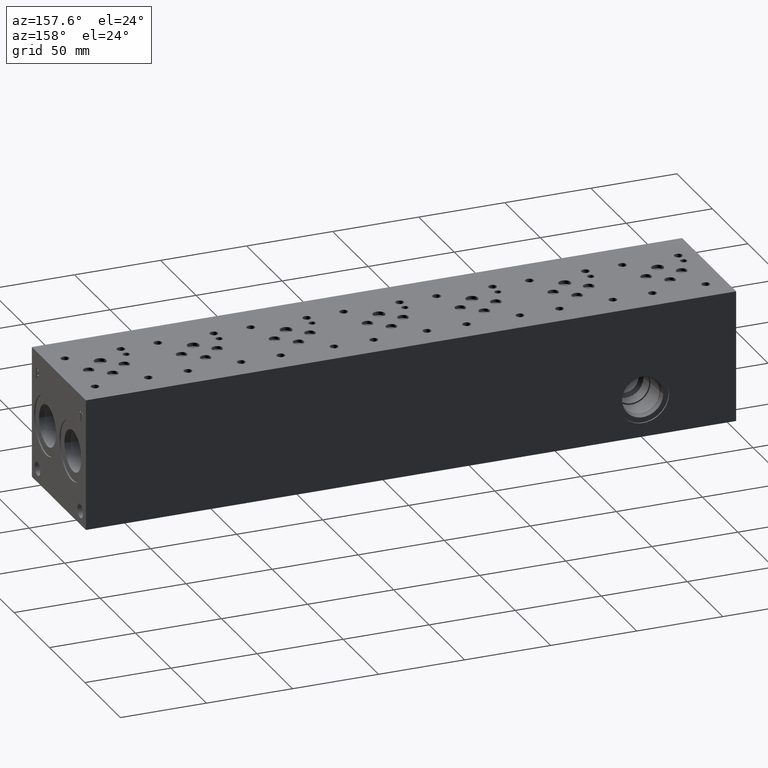
[diagram: clean part render]
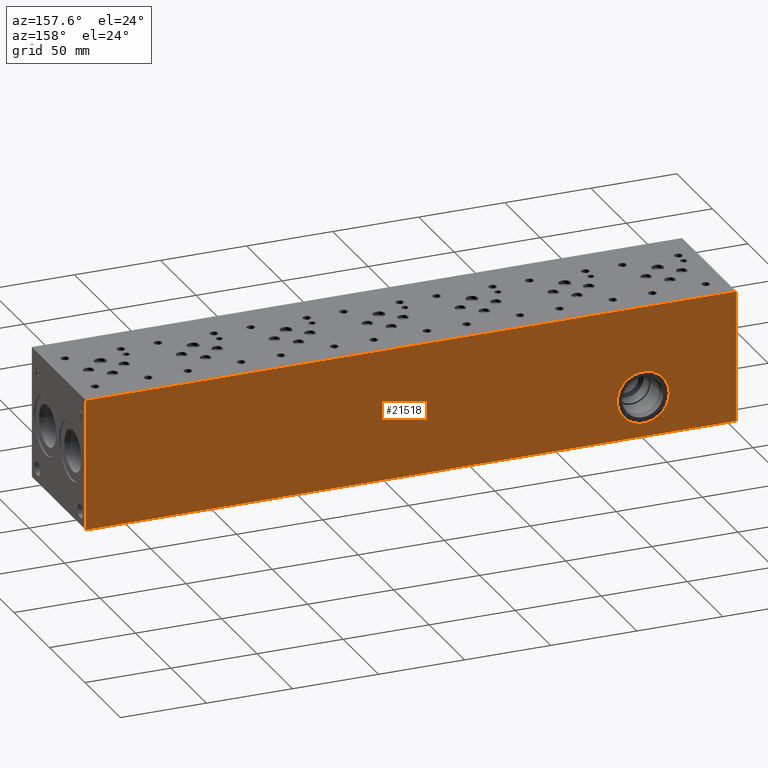
[diagram: same view with one face highlighted and labeled with its STEP entity id]
A machine part, auxiliary view. The second image highlights one B-rep face of the part: STEP entity #21518.
In plain terms, the highlighted planar face has unit normal (0, 1, 0).
Its self-contained STEP definition (entity closure, byte-faithful):
#414=CIRCLE('',#22035,15.08);
#415=CIRCLE('',#22036,15.08);
#1288=FACE_BOUND('',#4509,.T.);
#3214=FACE_OUTER_BOUND('',#4508,.T.);
#4508=EDGE_LOOP('',(#19047,#19048,#19049,#19050));
#4509=EDGE_LOOP('',(#19051,#19052));
#5891=LINE('',#35010,#7646);
#5951=LINE('',#35283,#7706);
#6330=LINE('',#37636,#8085);
#6331=LINE('',#37637,#8086);
#7646=VECTOR('',#25397,10.);
#7706=VECTOR('',#25511,10.);
#8085=VECTOR('',#28198,10.);
#8086=VECTOR('',#28199,10.);
#9311=VERTEX_POINT('',#35007);
#9312=VERTEX_POINT('',#35009);
#9369=VERTEX_POINT('',#35279);
#9370=VERTEX_POINT('',#35281);
#9395=VERTEX_POINT('',#35350);
#9396=VERTEX_POINT('',#35351);
#12011=EDGE_CURVE('',#9311,#9312,#5891,.T.);
#12095=EDGE_CURVE('',#9369,#9370,#5951,.T.);
#12128=EDGE_CURVE('',#9395,#9396,#414,.T.);
#12129=EDGE_CURVE('',#9396,#9395,#415,.T.);
#13191=EDGE_CURVE('',#9311,#9369,#6330,.T.);
#13192=EDGE_CURVE('',#9312,#9370,#6331,.T.);
#19047=ORIENTED_EDGE('',*,*,#13191,.T.);
#19048=ORIENTED_EDGE('',*,*,#12095,.T.);
#19049=ORIENTED_EDGE('',*,*,#13192,.F.);
#19050=ORIENTED_EDGE('',*,*,#12011,.F.);
#19051=ORIENTED_EDGE('',*,*,#12128,.T.);
#19052=ORIENTED_EDGE('',*,*,#12129,.T.);
#19721=PLANE('',#23170);
#21518=ADVANCED_FACE('',(#3214,#1288),#19721,.T.);
#22035=AXIS2_PLACEMENT_3D('',#35352,#25572,#25573);
#22036=AXIS2_PLACEMENT_3D('',#35353,#25574,#25575);
#23170=AXIS2_PLACEMENT_3D('',#37635,#28196,#28197);
#25397=DIRECTION('',(0.,0.,1.));
#25511=DIRECTION('',(0.,0.,1.));
#25572=DIRECTION('center_axis',(0.,-1.,0.));
#25573=DIRECTION('ref_axis',(1.,0.,0.));
#25574=DIRECTION('center_axis',(0.,-1.,0.));
#25575=DIRECTION('ref_axis',(1.,0.,0.));
#28196=DIRECTION('center_axis',(0.,1.,0.));
#28197=DIRECTION('ref_axis',(-1.,0.,0.));
#28198=DIRECTION('',(-1.,0.,0.));
#28199=DIRECTION('',(-1.,0.,0.));
#35007=CARTESIAN_POINT('',(377.825,76.2,0.));
#35009=CARTESIAN_POINT('',(377.825,76.2,76.2));
#35010=CARTESIAN_POINT('',(377.825,76.2,0.));
#35279=CARTESIAN_POINT('',(0.,76.2,0.));
#35281=CARTESIAN_POINT('',(0.,76.2,76.2));
#35283=CARTESIAN_POINT('',(0.,76.2,0.));
#35350=CARTESIAN_POINT('',(69.055,76.2,23.0124));
#35351=CARTESIAN_POINT('',(38.895,76.2,23.0124));
#35352=CARTESIAN_POINT('Origin',(53.975,76.2,23.0124));
#35353=CARTESIAN_POINT('Origin',(53.975,76.2,23.0124));
#37635=CARTESIAN_POINT('Origin',(377.825,76.2,0.));
#37636=CARTESIAN_POINT('',(377.825,76.2,0.));
#37637=CARTESIAN_POINT('',(377.825,76.2,76.2));